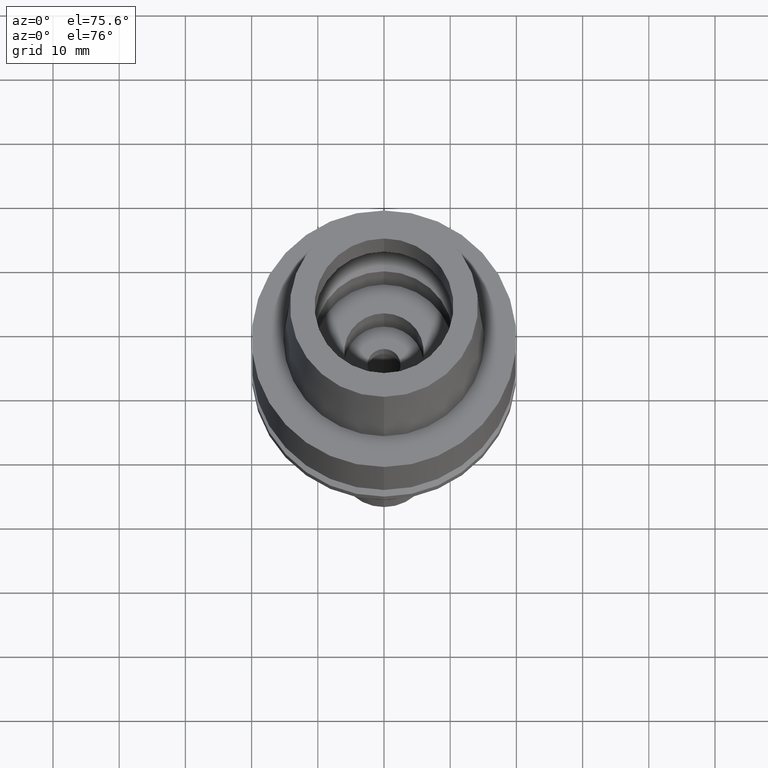
[diagram: clean part render]
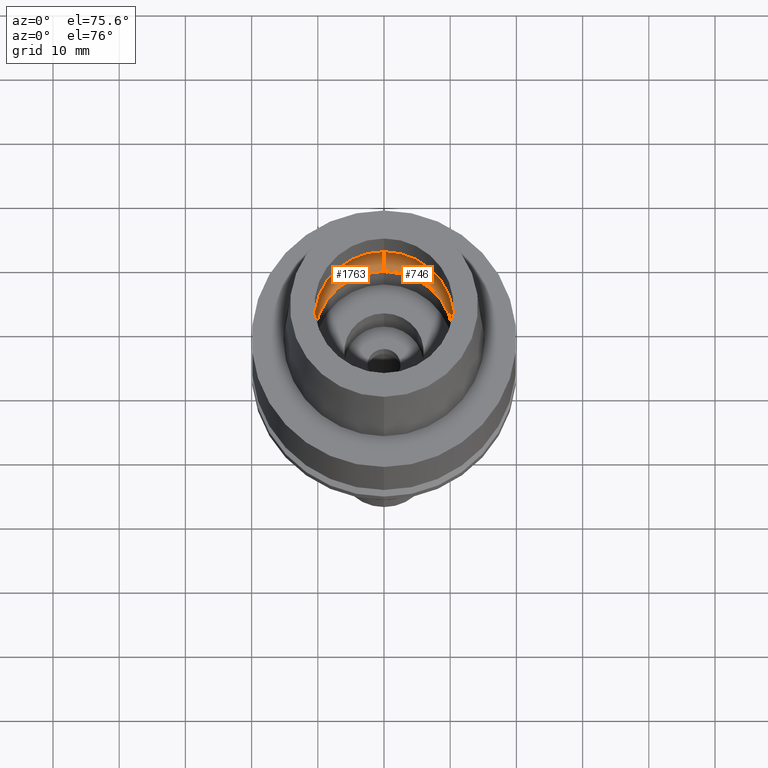
[diagram: same view with one multi-face feature highlighted, each face labeled with its STEP entity id]
A machine part, auxiliary view. The highlighted faces form ONE feature: a constant-radius fillet chain: 2 tangent blend faces with common blend radius 5 mm. The faces share edges in the B-rep.
Their STEP definitions:
[1] entity #746 (Torus):
#102 = EDGE_CURVE ( 'NONE', #2643, #2196, #1021, .T. ) ;
#105 = CARTESIAN_POINT ( 'NONE',  ( 0.0000000000000000000, 10.50000000000000000, 0.05017672787753999636 ) ) ;
#116 = ORIENTED_EDGE ( 'NONE', *, *, #289, .F. ) ;
#138 = CARTESIAN_POINT ( 'NONE',  ( 0.0000000000000000000, -10.50000000000000000, 0.05017672787749999364 ) ) ;
#238 = DIRECTION ( 'NONE',  ( 0.0000000000000000000, 1.000000000000000000, 0.0000000000000000000 ) ) ;
#250 = CARTESIAN_POINT ( 'NONE',  ( 0.0000000000000000000, -7.750000000000000000, 4.225999999999999979 ) ) ;
#262 = AXIS2_PLACEMENT_3D ( 'NONE', #1154, #949, #238 ) ;
#289 = EDGE_CURVE ( 'NONE', #2611, #2643, #1665, .T. ) ;
#378 = FACE_OUTER_BOUND ( 'NONE', #2237, .T. ) ;
#481 = AXIS2_PLACEMENT_3D ( 'NONE', #1161, #2011, #1785 ) ;
#536 = DIRECTION ( 'NONE',  ( 0.0000000000000000000, 0.0000000000000000000, -1.000000000000000000 ) ) ;
#557 = ORIENTED_EDGE ( 'NONE', *, *, #963, .T. ) ;
#746 = ADVANCED_FACE ( 'NONE', ( #378 ), #1875, .F. ) ;
#949 = DIRECTION ( 'NONE',  ( 0.0000000000000000000, 0.0000000000000000000, 1.000000000000000000 ) ) ;
#963 = EDGE_CURVE ( 'NONE', #2611, #1228, #2565, .T. ) ;
#1021 = CIRCLE ( 'NONE', #1350, 4.999999999999994671 ) ;
#1154 = CARTESIAN_POINT ( 'NONE',  ( 0.0000000000000000000, 0.0000000000000000000, 4.225999999999999979 ) ) ;
#1161 = CARTESIAN_POINT ( 'NONE',  ( 0.0000000000000000000, 0.0000000000000000000, 0.05017672787749999364 ) ) ;
#1228 = VERTEX_POINT ( 'NONE', #1552 ) ;
#1314 = CARTESIAN_POINT ( 'NONE',  ( 0.0000000000000000000, 7.750000000000000000, 4.225999999999999979 ) ) ;
#1344 = DIRECTION ( 'NONE',  ( 0.0000000000000000000, 0.5500000000000007105, -0.8351646544245028281 ) ) ;
#1350 = AXIS2_PLACEMENT_3D ( 'NONE', #1314, #1543, #1344 ) ;
#1497 = DIRECTION ( 'NONE',  ( 0.0000000000000000000, -0.5500000000000007105, -0.8351646544245028281 ) ) ;
#1543 = DIRECTION ( 'NONE',  ( 1.000000000000000000, 0.0000000000000000000, 0.0000000000000000000 ) ) ;
#1552 = CARTESIAN_POINT ( 'NONE',  ( 0.0000000000000000000, -12.75000000000000000, 4.225999999999999979 ) ) ;
#1665 = CIRCLE ( 'NONE', #481, 10.50000000000000000 ) ;
#1700 = CIRCLE ( 'NONE', #1877, 12.75000000000000000 ) ;
#1758 = ORIENTED_EDGE ( 'NONE', *, *, #102, .F. ) ;
#1785 = DIRECTION ( 'NONE',  ( 0.0000000000000000000, -1.000000000000000000, 0.0000000000000000000 ) ) ;
#1875 = TOROIDAL_SURFACE ( 'NONE', #262, 7.750000000000000000, 5.000000000000000000 ) ;
#1877 = AXIS2_PLACEMENT_3D ( 'NONE', #2394, #536, #2249 ) ;
#1937 = DIRECTION ( 'NONE',  ( -1.000000000000000000, 0.0000000000000000000, 0.0000000000000000000 ) ) ;
#2011 = DIRECTION ( 'NONE',  ( 0.0000000000000000000, 0.0000000000000000000, 1.000000000000000000 ) ) ;
#2196 = VERTEX_POINT ( 'NONE', #2271 ) ;
#2237 = EDGE_LOOP ( 'NONE', ( #116, #557, #2395, #1758 ) ) ;
#2249 = DIRECTION ( 'NONE',  ( 0.0000000000000000000, 1.000000000000000000, 0.0000000000000000000 ) ) ;
#2271 = CARTESIAN_POINT ( 'NONE',  ( 0.0000000000000000000, 12.75000000000000000, 4.225999999999999979 ) ) ;
#2394 = CARTESIAN_POINT ( 'NONE',  ( 0.0000000000000000000, 0.0000000000000000000, 4.225999999999999979 ) ) ;
#2395 = ORIENTED_EDGE ( 'NONE', *, *, #2666, .F. ) ;
#2446 = AXIS2_PLACEMENT_3D ( 'NONE', #250, #1937, #1497 ) ;
#2565 = CIRCLE ( 'NONE', #2446, 4.999999999999994671 ) ;
#2611 = VERTEX_POINT ( 'NONE', #138 ) ;
#2643 = VERTEX_POINT ( 'NONE', #105 ) ;
#2666 = EDGE_CURVE ( 'NONE', #2196, #1228, #1700, .T. ) ;
[2] entity #1763 (Torus):
#22 = ORIENTED_EDGE ( 'NONE', *, *, #365, .F. ) ;
#102 = EDGE_CURVE ( 'NONE', #2643, #2196, #1021, .T. ) ;
#105 = CARTESIAN_POINT ( 'NONE',  ( 0.0000000000000000000, 10.50000000000000000, 0.05017672787753999636 ) ) ;
#111 = AXIS2_PLACEMENT_3D ( 'NONE', #2642, #1388, #114 ) ;
#114 = DIRECTION ( 'NONE',  ( 0.0000000000000000000, -1.000000000000000000, 0.0000000000000000000 ) ) ;
#138 = CARTESIAN_POINT ( 'NONE',  ( 0.0000000000000000000, -10.50000000000000000, 0.05017672787749999364 ) ) ;
#182 = CARTESIAN_POINT ( 'NONE',  ( 0.0000000000000000000, 0.0000000000000000000, 4.225999999999999979 ) ) ;
#250 = CARTESIAN_POINT ( 'NONE',  ( 0.0000000000000000000, -7.750000000000000000, 4.225999999999999979 ) ) ;
#365 = EDGE_CURVE ( 'NONE', #2643, #2611, #1622, .T. ) ;
#394 = ORIENTED_EDGE ( 'NONE', *, *, #2079, .F. ) ;
#414 = CARTESIAN_POINT ( 'NONE',  ( 0.0000000000000000000, 0.0000000000000000000, 0.05017672787749999364 ) ) ;
#429 = TOROIDAL_SURFACE ( 'NONE', #2644, 7.750000000000000000, 5.000000000000000000 ) ;
#448 = AXIS2_PLACEMENT_3D ( 'NONE', #414, #2688, #635 ) ;
#635 = DIRECTION ( 'NONE',  ( 0.0000000000000000000, 1.000000000000000000, 0.0000000000000000000 ) ) ;
#729 = CIRCLE ( 'NONE', #111, 12.75000000000000000 ) ;
#963 = EDGE_CURVE ( 'NONE', #2611, #1228, #2565, .T. ) ;
#1021 = CIRCLE ( 'NONE', #1350, 4.999999999999994671 ) ;
#1228 = VERTEX_POINT ( 'NONE', #1552 ) ;
#1314 = CARTESIAN_POINT ( 'NONE',  ( 0.0000000000000000000, 7.750000000000000000, 4.225999999999999979 ) ) ;
#1323 = ORIENTED_EDGE ( 'NONE', *, *, #963, .F. ) ;
#1344 = DIRECTION ( 'NONE',  ( 0.0000000000000000000, 0.5500000000000007105, -0.8351646544245028281 ) ) ;
#1350 = AXIS2_PLACEMENT_3D ( 'NONE', #1314, #1543, #1344 ) ;
#1388 = DIRECTION ( 'NONE',  ( 0.0000000000000000000, 0.0000000000000000000, -1.000000000000000000 ) ) ;
#1497 = DIRECTION ( 'NONE',  ( 0.0000000000000000000, -0.5500000000000007105, -0.8351646544245028281 ) ) ;
#1543 = DIRECTION ( 'NONE',  ( 1.000000000000000000, 0.0000000000000000000, 0.0000000000000000000 ) ) ;
#1552 = CARTESIAN_POINT ( 'NONE',  ( 0.0000000000000000000, -12.75000000000000000, 4.225999999999999979 ) ) ;
#1622 = CIRCLE ( 'NONE', #448, 10.50000000000000000 ) ;
#1763 = ADVANCED_FACE ( 'NONE', ( #2280 ), #429, .F. ) ;
#1766 = EDGE_LOOP ( 'NONE', ( #394, #1323, #22, #2685 ) ) ;
#1937 = DIRECTION ( 'NONE',  ( -1.000000000000000000, 0.0000000000000000000, 0.0000000000000000000 ) ) ;
#2079 = EDGE_CURVE ( 'NONE', #1228, #2196, #729, .T. ) ;
#2196 = VERTEX_POINT ( 'NONE', #2271 ) ;
#2271 = CARTESIAN_POINT ( 'NONE',  ( 0.0000000000000000000, 12.75000000000000000, 4.225999999999999979 ) ) ;
#2280 = FACE_OUTER_BOUND ( 'NONE', #1766, .T. ) ;
#2308 = DIRECTION ( 'NONE',  ( 0.0000000000000000000, 0.0000000000000000000, 1.000000000000000000 ) ) ;
#2446 = AXIS2_PLACEMENT_3D ( 'NONE', #250, #1937, #1497 ) ;
#2508 = DIRECTION ( 'NONE',  ( 0.0000000000000000000, 1.000000000000000000, 0.0000000000000000000 ) ) ;
#2565 = CIRCLE ( 'NONE', #2446, 4.999999999999994671 ) ;
#2611 = VERTEX_POINT ( 'NONE', #138 ) ;
#2642 = CARTESIAN_POINT ( 'NONE',  ( 0.0000000000000000000, 0.0000000000000000000, 4.225999999999999979 ) ) ;
#2643 = VERTEX_POINT ( 'NONE', #105 ) ;
#2644 = AXIS2_PLACEMENT_3D ( 'NONE', #182, #2308, #2508 ) ;
#2685 = ORIENTED_EDGE ( 'NONE', *, *, #102, .T. ) ;
#2688 = DIRECTION ( 'NONE',  ( 0.0000000000000000000, 0.0000000000000000000, 1.000000000000000000 ) ) ;